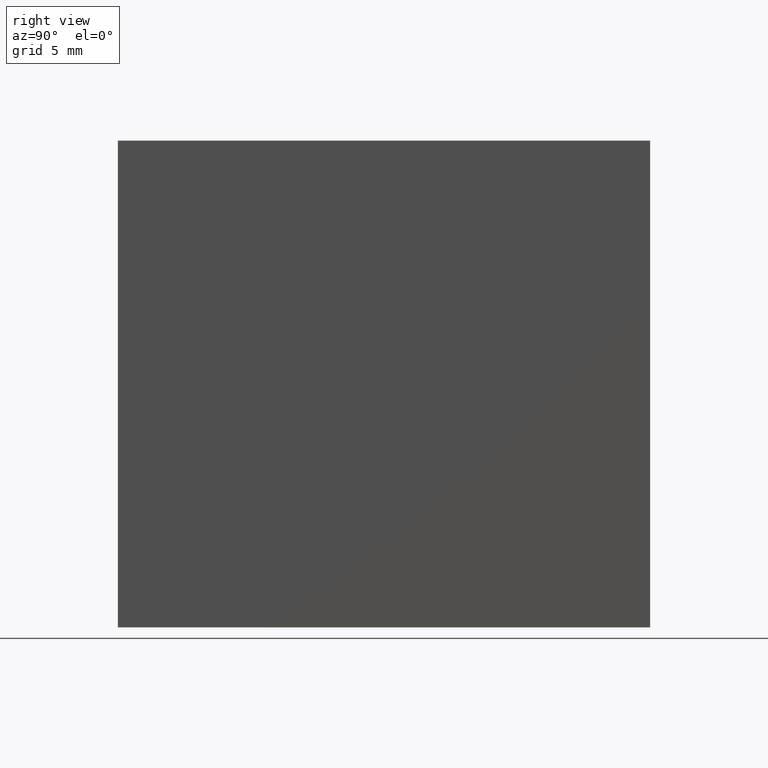
[diagram: clean part render]
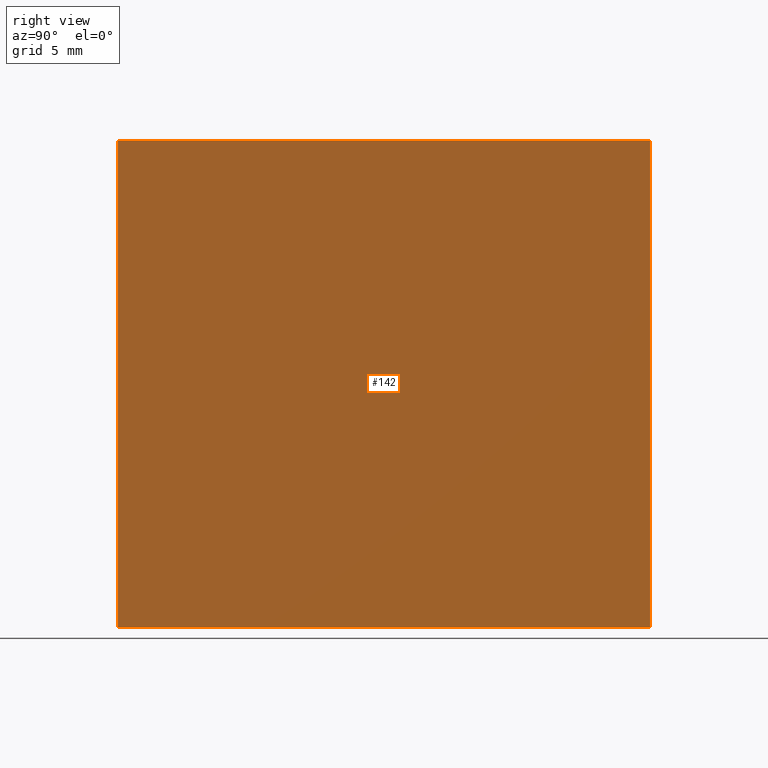
[diagram: same view with one face highlighted and labeled with its STEP entity id]
A machine part, right view. The second image highlights one B-rep face of the part: STEP entity #142.
In plain terms, the highlighted planar face has unit normal (1, 0, 0).
Its self-contained STEP definition (entity closure, byte-faithful):
#26=FACE_OUTER_BOUND('',#34,.T.);
#34=EDGE_LOOP('',(#115,#116,#117,#118));
#38=LINE('',#226,#52);
#48=LINE('',#253,#62);
#49=LINE('',#255,#63);
#50=LINE('',#256,#64);
#52=VECTOR('',#185,10.);
#62=VECTOR('',#211,10.);
#63=VECTOR('',#214,10.);
#64=VECTOR('',#215,10.);
#66=VERTEX_POINT('',#223);
#67=VERTEX_POINT('',#225);
#75=VERTEX_POINT('',#249);
#76=VERTEX_POINT('',#251);
#78=EDGE_CURVE('',#66,#67,#38,.T.);
#92=EDGE_CURVE('',#75,#76,#48,.T.);
#93=EDGE_CURVE('',#66,#75,#49,.T.);
#94=EDGE_CURVE('',#67,#76,#50,.T.);
#115=ORIENTED_EDGE('',*,*,#93,.T.);
#116=ORIENTED_EDGE('',*,*,#92,.T.);
#117=ORIENTED_EDGE('',*,*,#94,.F.);
#118=ORIENTED_EDGE('',*,*,#78,.F.);
#134=PLANE('',#177);
#142=ADVANCED_FACE('',(#26),#134,.T.);
#177=AXIS2_PLACEMENT_3D('',#254,#212,#213);
#185=DIRECTION('',(0.,1.,0.));
#211=DIRECTION('',(0.,1.,0.));
#212=DIRECTION('center_axis',(1.,0.,0.));
#213=DIRECTION('ref_axis',(0.,0.,-1.));
#214=DIRECTION('',(0.,0.,-1.));
#215=DIRECTION('',(0.,0.,-1.));
#223=CARTESIAN_POINT('',(0.,0.,16.));
#225=CARTESIAN_POINT('',(0.,35.,16.));
#226=CARTESIAN_POINT('',(0.,0.,16.));
#249=CARTESIAN_POINT('',(0.,0.,-16.));
#251=CARTESIAN_POINT('',(0.,35.,-16.));
#253=CARTESIAN_POINT('',(0.,0.,-16.));
#254=CARTESIAN_POINT('Origin',(0.,0.,16.));
#255=CARTESIAN_POINT('',(0.,0.,16.));
#256=CARTESIAN_POINT('',(0.,35.,16.));